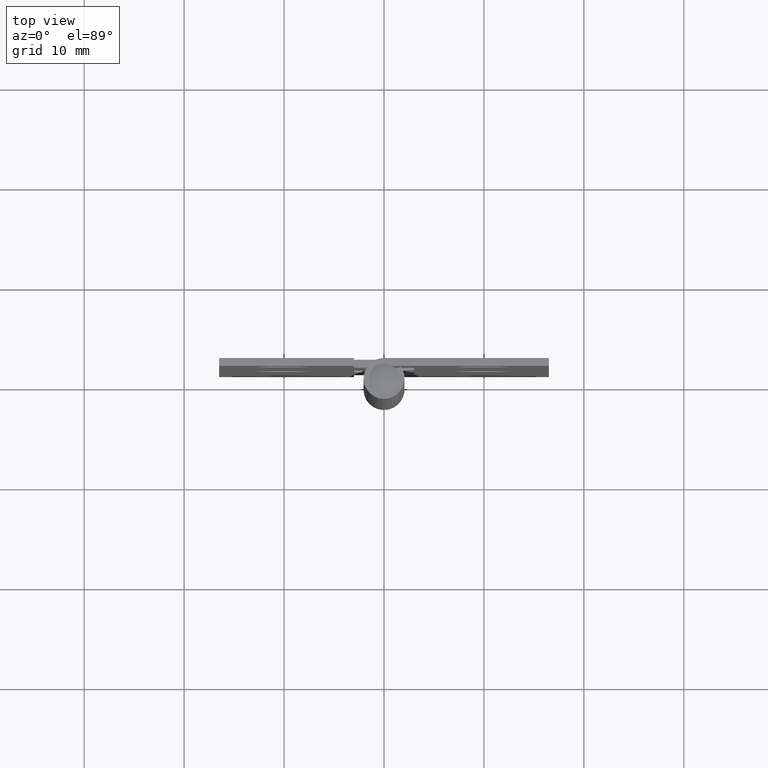
[diagram: clean part render]
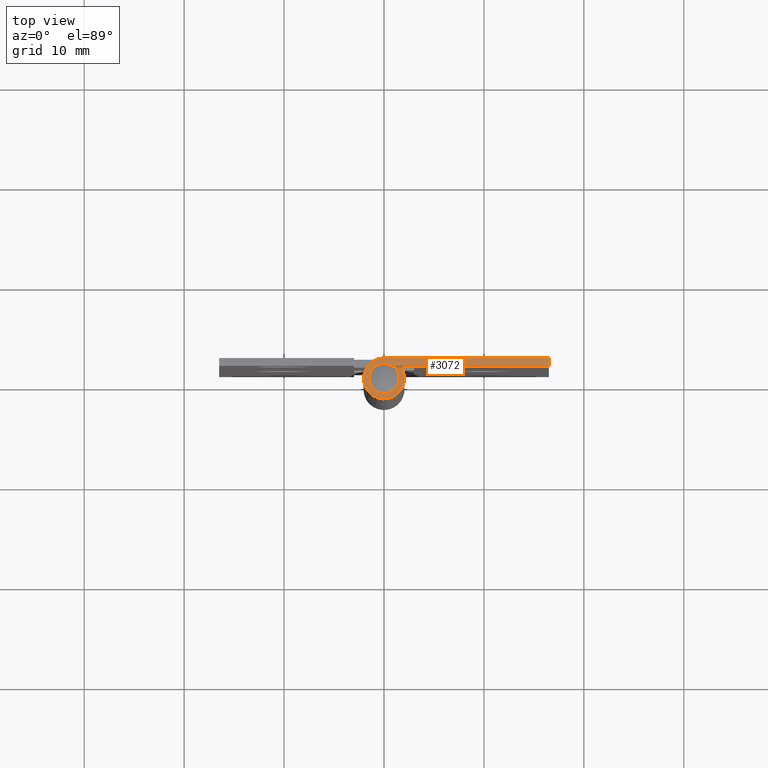
[diagram: same view with one face highlighted and labeled with its STEP entity id]
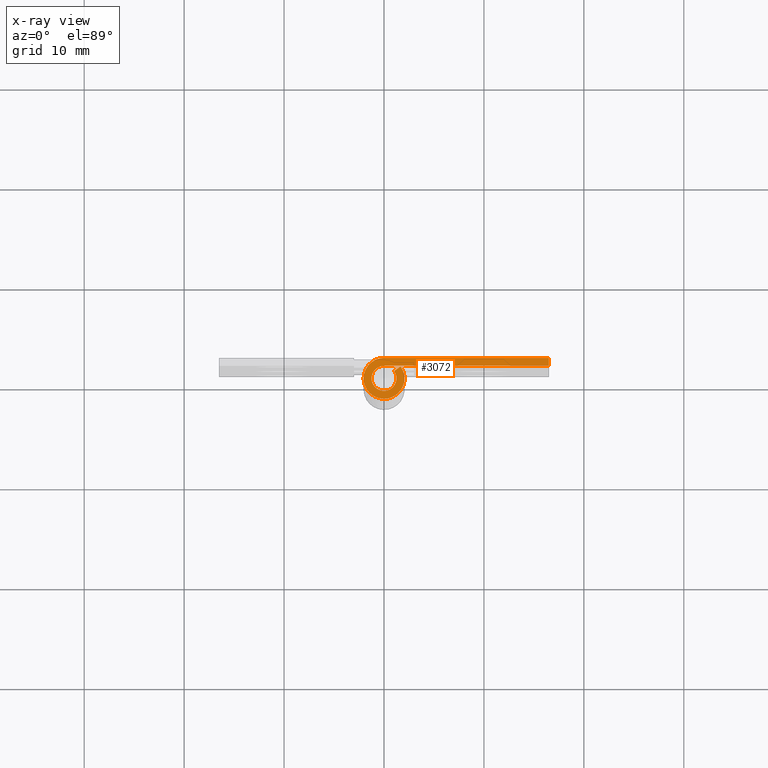
[diagram: x-ray of the same camera — body ghosted, the highlighted face saturated]
A machine part, top view. The second image highlights one B-rep face of the part: STEP entity #3072.
The next image is the same camera in x-ray: the body ghosted, the highlighted face saturated — about 0% of this face is hidden behind the body in this view.
In plain terms, the highlighted face is a freeform B-spline surface patch.
Its self-contained STEP definition (entity closure, byte-faithful):
#2407=CARTESIAN_POINT('',(1.662078457834050,1.199998000000014,64.000007999999895));
#2408=VERTEX_POINT('',#2407);
#2423=CARTESIAN_POINT('',(1.013462474289058,0.731706097560987,64.000007999999895));
#2424=VERTEX_POINT('',#2423);
#2430=CARTESIAN_POINT('',(1.013462474289058,0.731706097560987,64.000007999999895));
#2431=CARTESIAN_POINT('',(1.662078457834050,1.199998000000014,64.000007999999895));
#2432=QUASI_UNIFORM_CURVE('',1,(#2430,#2431),.UNSPECIFIED.,.F.,.U.);
#2433=EDGE_CURVE('',#2424,#2408,#2432,.T.);
#2573=CARTESIAN_POINT('',(-0.002236067073799,1.249998000000016,64.000007999999895));
#2574=VERTEX_POINT('',#2573);
#2580=CARTESIAN_POINT('',(1.013462474289058,0.731706097560987,64.000007999999895));
#2581=CARTESIAN_POINT('',(1.074476702950380,0.647229330225711,64.000007999999937));
#2582=CARTESIAN_POINT('',(1.183640286667656,0.447532320588371,64.000007999999738));
#2583=CARTESIAN_POINT('',(1.249486777395411,0.165471545029647,64.000008000000179));
#2584=CARTESIAN_POINT('',(1.252368842477962,-0.113198052320547,64.000007999999667));
#2585=CARTESIAN_POINT('',(1.210774005553647,-0.345537861205069,64.000007999999980));
#2586=CARTESIAN_POINT('',(1.112328244312693,-0.588009587540637,64.000008000000051));
#2587=CARTESIAN_POINT('',(0.939203988897252,-0.850420535780582,64.000007999999880));
#2588=CARTESIAN_POINT('',(0.690796031126142,-1.062099583389238,64.000007999999951));
#2589=CARTESIAN_POINT('',(0.412237811648610,-1.187873423462363,64.000008000000079));
#2590=CARTESIAN_POINT('',(0.158082646000098,-1.249241370012399,64.000007999998971));
#2591=CARTESIAN_POINT('',(-0.139401016935722,-1.257732105123779,64.000008000001500));
#2592=CARTESIAN_POINT('',(-0.446125625509941,-1.181828537943764,64.000007999998630));
#2593=CARTESIAN_POINT('',(-0.746181935600573,-1.020739653332963,64.000008000000093));
#2594=CARTESIAN_POINT('',(-1.015627279551769,-0.768261839854517,64.000007999999895));
#2595=CARTESIAN_POINT('',(-1.188003170111429,-0.440276252291649,64.000007999999994));
#2596=CARTESIAN_POINT('',(-1.265365711611607,-0.063901209769149,64.000007999999838));
#2597=CARTESIAN_POINT('',(-1.237655893950081,0.287847551676362,64.000007999999909));
#2598=CARTESIAN_POINT('',(-1.107167193531756,0.603797234611459,64.000007999999923));
#2599=CARTESIAN_POINT('',(-0.919489426398424,0.866412545491689,64.000007999999880));
#2600=CARTESIAN_POINT('',(-0.690891756273864,1.058972998449267,64.000007999999937));
#2601=CARTESIAN_POINT('',(-0.366860488812836,1.211279778576595,64.000007999999866));
#2602=CARTESIAN_POINT('',(-0.141198369842336,1.249845216601017,64.000007999999937));
#2603=CARTESIAN_POINT('',(-0.002236067073799,1.249998000000016,64.000007999999895));
#2604=B_SPLINE_CURVE_WITH_KNOTS('',3,(#2580,#2581,#2582,#2583,#2584,#2585,#2586,#2587,#2588,#2589,#2590,#2591,#2592,#2593,#2594,#2595,#2596,#2597,#2598,#2599,#2600,#2601,#2602,#2603),.UNSPECIFIED.,.F.,.U.,(4,1,1,1,1,1,1,1,1,1,1,1,1,1,1,1,1,1,1,1,1,4),(0.000000581460641,0.312630121065156,0.677423746960189,0.859810655489952,1.146431209591337,1.380922372623336,1.641482338457145,2.084361710342834,2.344924594511839,2.553373897764097,2.866034695847453,3.230799520473286,3.491310075937005,3.882166049609411,4.325109329145590,4.585672213284271,5.028550018597136,5.367277100040925,5.601772476494683,5.992617551763289,6.253180435909533,6.670033407064125),.UNSPECIFIED.);
#2605=EDGE_CURVE('',#2424,#2574,#2604,.T.);
#2664=CARTESIAN_POINT('',(16.500000000000000,1.250000000000000,64.000007999999895));
#2665=VERTEX_POINT('',#2664);
#2671=CARTESIAN_POINT('',(16.500000000000000,1.250000000000000,64.000007999999895));
#2672=CARTESIAN_POINT('',(-0.002236067073799,1.249998000000016,64.000007999999895));
#2673=QUASI_UNIFORM_CURVE('',1,(#2671,#2672),.UNSPECIFIED.,.F.,.U.);
#2674=EDGE_CURVE('',#2665,#2574,#2673,.T.);
#3017=CARTESIAN_POINT('',(-2.976515501319510,-2.254752682145864,64.000007999999994));
#3018=CARTESIAN_POINT('',(17.426570251646609,-2.254752682145864,64.000007999999994));
#3019=CARTESIAN_POINT('',(-2.976515501319510,2.254790993944339,64.000007999999994));
#3020=CARTESIAN_POINT('',(17.426570251646609,2.254790993944339,64.000007999999994));
#3021=B_SPLINE_SURFACE_WITH_KNOTS('',1,1,((#3017,#3019),(#3018,#3020)),.UNSPECIFIED.,.F.,.F.,.U.,(2,2),(2,2),(0.0,20.403085752966110),(0.0,4.509543676090203),.UNSPECIFIED.);
#3022=CARTESIAN_POINT('',(0.002863563502375,2.049998000000000,64.000007999999895));
#3023=VERTEX_POINT('',#3022);
#3024=CARTESIAN_POINT('',(16.500000000000000,2.049998000000000,64.000007999999895));
#3025=VERTEX_POINT('',#3024);
#3026=CARTESIAN_POINT('',(0.002863563502375,2.049998000000000,64.000007999999895));
#3027=CARTESIAN_POINT('',(16.500000000000000,2.049998000000000,64.000007999999895));
#3028=QUASI_UNIFORM_CURVE('',1,(#3026,#3027),.UNSPECIFIED.,.F.,.U.);
#3029=EDGE_CURVE('',#3023,#3025,#3028,.T.);
#3030=ORIENTED_EDGE('',*,*,#3029,.F.);
#3031=CARTESIAN_POINT('',(1.662078457834050,1.199998000000014,64.000007999999895));
#3032=CARTESIAN_POINT('',(1.762225679605891,1.061372857894088,64.000007999999866));
#3033=CARTESIAN_POINT('',(1.899918215506916,0.809266941640511,64.000007999999994));
#3034=CARTESIAN_POINT('',(2.015052342125208,0.425740999369884,64.000007999999795));
#3035=CARTESIAN_POINT('',(2.059556415805698,0.070979806602240,64.000007999999895));
#3036=CARTESIAN_POINT('',(2.040784890284897,-0.286392340465961,64.000007999999909));
#3037=CARTESIAN_POINT('',(1.952842240113758,-0.662390911374930,64.000007999999980));
#3038=CARTESIAN_POINT('',(1.813412383763775,-0.976752708837167,64.000007999999639));
#3039=CARTESIAN_POINT('',(1.616471797703529,-1.274487609444982,64.000008000000378));
#3040=CARTESIAN_POINT('',(1.326756816429511,-1.591486412319776,64.000008000000292));
#3041=CARTESIAN_POINT('',(0.940582292325996,-1.844388235123888,64.000007999998388));
#3042=CARTESIAN_POINT('',(0.482099909530776,-2.006444177679942,64.000008000001216));
#3043=CARTESIAN_POINT('',(0.041851787953922,-2.069360742746085,64.000007999999397));
#3044=CARTESIAN_POINT('',(-0.401283808925418,-2.025753475989139,64.000007999999994));
#3045=CARTESIAN_POINT('',(-0.810292790058207,-1.896234154435569,64.000007999999198));
#3046=CARTESIAN_POINT('',(-1.226622851249489,-1.672001802073192,64.000008000000207));
#3047=CARTESIAN_POINT('',(-1.594324382411380,-1.326000635438284,64.000007999999795));
#3048=CARTESIAN_POINT('',(-1.873718501262228,-0.875356997997747,64.000007999999823));
#3049=CARTESIAN_POINT('',(-2.016203310931235,-0.453498592924978,64.000008000000065));
#3050=CARTESIAN_POINT('',(-2.060367667163249,-0.040724313724280,64.000008000000037));
#3051=CARTESIAN_POINT('',(-2.031161857001671,0.372974249390461,64.000008000000022));
#3052=CARTESIAN_POINT('',(-1.924311109720232,0.745750873082694,64.000007999999895));
#3053=CARTESIAN_POINT('',(-1.727390923298209,1.126538509731673,64.000007999999724));
#3054=CARTESIAN_POINT('',(-1.461862483692006,1.465239715718792,64.000007999999838));
#3055=CARTESIAN_POINT('',(-1.043979190252736,1.793630137584711,64.000008000001557));
#3056=CARTESIAN_POINT('',(-0.538757077665372,2.004181606047320,64.000007999995134));
#3057=CARTESIAN_POINT('',(-0.168144473883999,2.050267467696618,64.000008000001728));
#3058=CARTESIAN_POINT('',(0.002863563502375,2.049998000000000,64.000007999999895));
#3059=B_SPLINE_CURVE_WITH_KNOTS('',3,(#3031,#3032,#3033,#3034,#3035,#3036,#3037,#3038,#3039,#3040,#3041,#3042,#3043,#3044,#3045,#3046,#3047,#3048,#3049,#3050,#3051,#3052,#3053,#3054,#3055,#3056,#3057,#3058),.UNSPECIFIED.,.F.,.U.,(4,1,1,1,1,1,1,1,1,1,1,1,1,1,1,1,1,1,1,1,1,1,1,1,1,4),(0.000000121313963,0.513040008207183,0.855096265807276,1.197148146563944,1.581956527810082,1.923995359421349,2.351572444765221,2.608085182623110,2.992851667568288,3.634194509426263,3.976249133857508,4.446563837557426,4.959652350803150,5.301690282984307,5.729198100807559,6.370540942667574,6.798110237824048,7.311191474827792,7.695998784045088,8.038036716222621,8.551050655533157,8.850368568158551,9.320672871078596,9.833752412900051,10.432345217286940,10.945385858609461),.UNSPECIFIED.);
#3060=EDGE_CURVE('',#2408,#3023,#3059,.T.);
#3061=ORIENTED_EDGE('',*,*,#3060,.F.);
#3062=ORIENTED_EDGE('',*,*,#2433,.F.);
#3063=ORIENTED_EDGE('',*,*,#2605,.T.);
#3064=ORIENTED_EDGE('',*,*,#2674,.F.);
#3065=CARTESIAN_POINT('',(16.500000000000000,2.049998000000000,64.000007999999895));
#3066=CARTESIAN_POINT('',(16.500000000000000,1.250000000000000,64.000007999999895));
#3067=QUASI_UNIFORM_CURVE('',1,(#3065,#3066),.UNSPECIFIED.,.F.,.U.);
#3068=EDGE_CURVE('',#3025,#2665,#3067,.T.);
#3069=ORIENTED_EDGE('',*,*,#3068,.F.);
#3070=EDGE_LOOP('',(#3030,#3061,#3062,#3063,#3064,#3069));
#3071=FACE_OUTER_BOUND('',#3070,.T.);
#3072=ADVANCED_FACE('',(#3071),#3021,.T.);